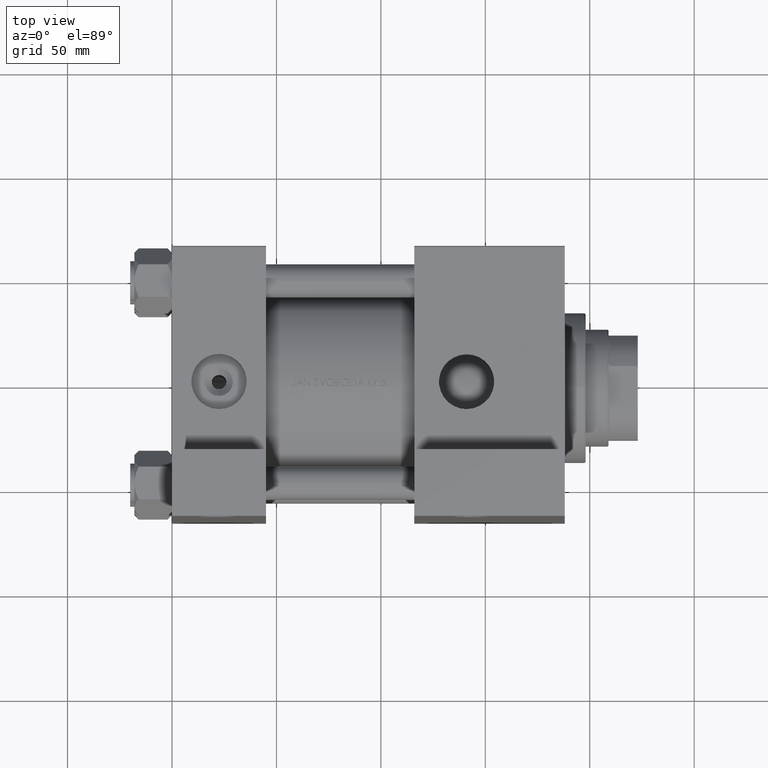
[diagram: clean part render]
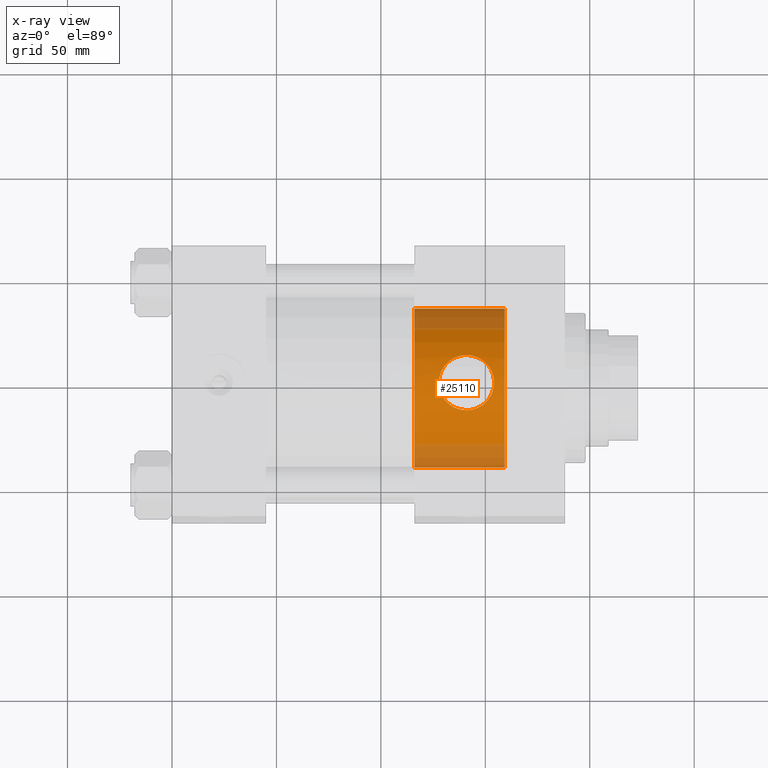
[diagram: x-ray — body ghosted, one internal face saturated and labeled with its STEP entity id]
A machine part, top view, then the same camera in x-ray: the body is ghosted and one INTERNAL B-rep face — a face not visible from any outside direction — is saturated and labeled: STEP entity #25110.
In plain terms, the highlighted cylindrical surface (partial cylindrical patch) has radius 38 mm, axis along (1, 0, 0).
Its self-contained STEP definition (entity closure, byte-faithful):
#418 = CARTESIAN_POINT ( 'NONE',  ( 151.4642026907970660, -36.63749335557151454, 8.090122517376380884 ) ) ;
#652 = CARTESIAN_POINT ( 'NONE',  ( 142.7346413003333794, -34.86547398014265298, 13.11293849209190121 ) ) ;
#786 = CARTESIAN_POINT ( 'NONE',  ( 139.2621027635022415, -34.86564377304693352, 13.11254740545284925 ) ) ;
#800 = EDGE_CURVE ( 'NONE', #35063, #37606, #31866, .T. ) ;
#894 = CARTESIAN_POINT ( 'NONE',  ( 145.6903198226786458, -36.55875268236805198, -12.36763346371769501 ) ) ;
#941 = VECTOR ( 'NONE', #30660, 1000.000000000000000 ) ;
#1024 = CARTESIAN_POINT ( 'NONE',  ( 129.5707830003892127, -36.99825475371151384, 6.698221717792319119 ) ) ;
#1134 = CARTESIAN_POINT ( 'NONE',  ( 154.2253581792138561, -37.99057531168406854, -0.7849639124246683419 ) ) ;
#1261 = CARTESIAN_POINT ( 'NONE',  ( 129.5033817226610893, -37.72956381629557399, -6.584862531444480638 ) ) ;
#1505 = CARTESIAN_POINT ( 'NONE',  ( 139.2526670680328493, -36.33310476771637809, -13.13270914549851298 ) ) ;
#1648 = CIRCLE ( 'NONE', #24886, 38.00000000000000000 ) ;
#4061 = CARTESIAN_POINT ( 'NONE',  ( 152.8828564690548717, -37.81049890679813785, -5.809885133141944991 ) ) ;
#4292 = CARTESIAN_POINT ( 'NONE',  ( 149.0625700176376540, -35.88477209687096803, 10.51153348735561011 ) ) ;
#4359 = LINE ( 'NONE', #23273, #29450 ) ;
#4421 = CARTESIAN_POINT ( 'NONE',  ( 136.7191741648161951, -35.11120562881720986, 12.53718063077738698 ) ) ;
#4527 = CARTESIAN_POINT ( 'NONE',  ( 152.8238717678103740, -37.16566442010724813, 5.928573979386407622 ) ) ;
#4769 = CARTESIAN_POINT ( 'NONE',  ( 154.1923565151350033, -37.88706170508164206, 0.9599543874862046522 ) ) ;
#4898 = CARTESIAN_POINT ( 'NONE',  ( 134.3770611033072271, -35.54092409615689263, 11.44955992700611880 ) ) ;
#5380 = CARTESIAN_POINT ( 'NONE',  ( 127.9669524334681228, -37.76318761159770787, 2.257168089450936499 ) ) ;
#7686 = CARTESIAN_POINT ( 'NONE',  ( 153.0668203676117685, -37.84816157645740731, -5.417409685537321273 ) ) ;
#7911 = CARTESIAN_POINT ( 'NONE',  ( 153.7705088574690819, -37.60581935524176345, 3.525064450256392146 ) ) ;
#8149 = CARTESIAN_POINT ( 'NONE',  ( 154.0327892283337121, -37.76302963194533646, 2.258472690585056508 ) ) ;
#8283 = CARTESIAN_POINT ( 'NONE',  ( 140.1184107338403351, -36.30580669810270678, -13.22000000000000952 ) ) ;
#8389 = CARTESIAN_POINT ( 'NONE',  ( 153.8970428021249859, -37.99087152665658351, -2.936962175514609363 ) ) ;
#8498 = ORIENTED_EDGE ( 'NONE', *, *, #17123, .F. ) ;
#8523 = CARTESIAN_POINT ( 'NONE',  ( 134.3442237842121756, -36.80826901869016865, -11.45506950435124338 ) ) ;
#9000 = CARTESIAN_POINT ( 'NONE',  ( 127.7830102878484979, -37.91895069209609659, 0.5185396665161369212 ) ) ;
#9237 = CARTESIAN_POINT ( 'NONE',  ( 135.1401722862821373, -35.38356645407884571, 11.85825287793163874 ) ) ;
#9923 = VERTEX_POINT ( 'NONE', #41686 ) ;
#10271 = CARTESIAN_POINT ( 'NONE',  ( 159.3000000000000114, 0.000000000000000000, -39.99999999999998579 ) ) ;
#10450 = CARTESIAN_POINT ( 'NONE',  ( 115.9999999999999858, 0.000000000000000000, -39.99999999999998579 ) ) ;
#10822 = EDGE_CURVE ( 'NONE', #41631, #9923, #4359, .T. ) ;
#11788 = CARTESIAN_POINT ( 'NONE',  ( 150.9220406513138073, -36.45034192776826387, 8.746583882517859010 ) ) ;
#12025 = CARTESIAN_POINT ( 'NONE',  ( 153.5410806955982821, -37.93829887808205825, -4.204879316305916603 ) ) ;
#12156 = CARTESIAN_POINT ( 'NONE',  ( 136.7194645385301044, -36.51634164698442220, -12.51543961431428897 ) ) ;
#12401 = CARTESIAN_POINT ( 'NONE',  ( 140.5658393548362426, -34.81883972794039295, 13.22000000000001840 ) ) ;
#12625 = ORIENTED_EDGE ( 'NONE', *, *, #24176, .T. ) ;
#12643 = CARTESIAN_POINT ( 'NONE',  ( 130.4705868400011752, -37.52389163003577011, -8.041399435353824288 ) ) ;
#12792 = DIRECTION ( 'NONE',  ( 0.000000000000000000, 0.000000000000000000, -1.000000000000000000 ) ) ;
#13374 = CARTESIAN_POINT ( 'NONE',  ( 115.9999999999999858, 0.000000000000000000, -1.999999999999988010 ) ) ;
#13418 = CIRCLE ( 'NONE', #27427, 38.00000000000000000 ) ;
#13971 = CARTESIAN_POINT ( 'NONE',  ( 115.9999999999999858, 4.653657836759941941E-15, 36.00000000000001421 ) ) ;
#14911 = ORIENTED_EDGE ( 'NONE', *, *, #33865, .T. ) ;
#15145 = ORIENTED_EDGE ( 'NONE', *, *, #10822, .T. ) ;
#15189 = CARTESIAN_POINT ( 'NONE',  ( 144.4420950536643034, -36.44163912734476440, -12.77146717550510679 ) ) ;
#15431 = CARTESIAN_POINT ( 'NONE',  ( 145.2829566133793548, -35.11144068922274641, 12.53664980638293081 ) ) ;
#15667 = CARTESIAN_POINT ( 'NONE',  ( 154.2169054650021565, -37.91879989042578813, 0.5208423535708411878 ) ) ;
#15789 = CARTESIAN_POINT ( 'NONE',  ( -13.48023074035523194, 0.000000000000000000, -39.99999999999998579 ) ) ;
#15798 = CARTESIAN_POINT ( 'NONE',  ( 135.5292921005779760, -35.31057834280793628, 12.04260134186884912 ) ) ;
#15907 = CARTESIAN_POINT ( 'NONE',  ( 147.6528821679950170, -36.80786112204481242, -11.45656873318479541 ) ) ;
#15965 = CARTESIAN_POINT ( 'NONE',  ( 141.0000000000000000, -34.81883972794038584, 13.22000000000001663 ) ) ;
#16037 = CARTESIAN_POINT ( 'NONE',  ( 128.6045373898323305, -37.91197009954529307, -4.616085602355758155 ) ) ;
#16282 = CARTESIAN_POINT ( 'NONE',  ( 133.2663750092749524, -36.98428736182029297, -10.73064947236997924 ) ) ;
#16443 = VERTEX_POINT ( 'NONE', #10271 ) ;
#16521 = CARTESIAN_POINT ( 'NONE',  ( 131.0169695187528021, -37.40821933718307690, -8.709134316197207681 ) ) ;
#17123 = EDGE_CURVE ( 'NONE', #46036, #16443, #26995, .T. ) ;
#17142 = AXIS2_PLACEMENT_3D ( 'NONE', #30819, #38118, #12792 ) ;
#18602 = CARTESIAN_POINT ( 'NONE',  ( 144.4571944884152970, -35.00419393395034007, 12.78990986691792742 ) ) ;
#18839 = CARTESIAN_POINT ( 'NONE',  ( 151.7185126045471293, -36.72968401672413563, 7.749993592228429762 ) ) ;
#19075 = CARTESIAN_POINT ( 'NONE',  ( 150.6331099638243245, -36.35504197374253010, 9.063978380048260064 ) ) ;
#19206 = CARTESIAN_POINT ( 'NONE',  ( 137.5422408070765812, -35.00433994923903924, 12.78955956148845097 ) ) ;
#19316 = CARTESIAN_POINT ( 'NONE',  ( 154.1000314400817501, -37.80901679354371225, 1.830016152210643288 ) ) ;
#19450 = CARTESIAN_POINT ( 'NONE',  ( 132.2855022092603008, -36.06844539068644906, 9.977675486919514114 ) ) ;
#19560 = CARTESIAN_POINT ( 'NONE',  ( 154.1457947766875236, -38.00807798060433385, -1.649460254205606269 ) ) ;
#19694 = CARTESIAN_POINT ( 'NONE',  ( 129.0972672544065176, -37.81630080774078095, -5.817448892800099358 ) ) ;
#19844 = FACE_BOUND ( 'NONE', #25352, .T. ) ;
#19889 = EDGE_CURVE ( 'NONE', #37606, #35063, #46921, .T. ) ;
#19930 = CARTESIAN_POINT ( 'NONE',  ( 141.0000000000000000, -36.30580669810271388, -13.22000000000000952 ) ) ;
#20181 = CARTESIAN_POINT ( 'NONE',  ( 128.4857071059992109, -37.47470314198346131, 4.348809781156726118 ) ) ;
#22495 = CARTESIAN_POINT ( 'NONE',  ( 153.0122254699012956, -37.24719907920242434, 5.537240463846701211 ) ) ;
#22731 = CARTESIAN_POINT ( 'NONE',  ( 152.4152243103603439, -36.99699539428115003, 6.681660493832258574 ) ) ;
#23096 = CARTESIAN_POINT ( 'NONE',  ( 135.1036065885802486, -36.69906825648583037, -11.86403189754284249 ) ) ;
#23205 = CARTESIAN_POINT ( 'NONE',  ( 149.0765887743845326, -37.04394579636399953, -10.47506457977866745 ) ) ;
#23273 = CARTESIAN_POINT ( 'NONE',  ( -13.48023074035523194, 4.653657836759941941E-15, 36.00000000000001421 ) ) ;
#23344 = CARTESIAN_POINT ( 'NONE',  ( 130.2859386918351277, -36.72804425259461425, 7.756190052861525963 ) ) ;
#23817 = CARTESIAN_POINT ( 'NONE',  ( 127.8073938140129826, -37.88731688347861137, 0.9567683311120193101 ) ) ;
#24176 = EDGE_CURVE ( 'NONE', #9923, #16443, #1648, .T. ) ;
#24886 = AXIS2_PLACEMENT_3D ( 'NONE', #25349, #43398, #28782 ) ;
#25110 = ADVANCED_FACE ( 'NONE', ( #19844, #30584 ), #42026, .F. ) ;
#25349 = CARTESIAN_POINT ( 'NONE',  ( 159.3000000000000114, 0.000000000000000000, -1.999999999999988010 ) ) ;
#25352 = EDGE_LOOP ( 'NONE', ( #27584, #33110 ) ) ;
#26395 = CARTESIAN_POINT ( 'NONE',  ( 150.0686983054853272, -37.22766486133667030, -9.628768659086947679 ) ) ;
#26870 = CARTESIAN_POINT ( 'NONE',  ( 147.9982523019006635, -35.62573892309502099, 11.22386331016282845 ) ) ;
#26995 = LINE ( 'NONE', #15789, #941 ) ;
#27113 = CARTESIAN_POINT ( 'NONE',  ( 151.5275544278700011, -37.52349855308634119, -8.043607895082169890 ) ) ;
#27246 = CARTESIAN_POINT ( 'NONE',  ( 141.0000000000000000, -34.81883972794038584, 13.22000000000001663 ) ) ;
#27427 = AXIS2_PLACEMENT_3D ( 'NONE', #13374, #32146, #37179 ) ;
#27485 = CARTESIAN_POINT ( 'NONE',  ( 128.4595858639368942, -37.93818000440987959, -4.206797350588238338 ) ) ;
#27584 = ORIENTED_EDGE ( 'NONE', *, *, #800, .F. ) ;
#27727 = CARTESIAN_POINT ( 'NONE',  ( 127.7747698079172949, -37.99062179197093059, -0.7866944221894590639 ) ) ;
#28782 = DIRECTION ( 'NONE',  ( 0.000000000000000000, 0.000000000000000000, -1.000000000000000000 ) ) ;
#29450 = VECTOR ( 'NONE', #38140, 1000.000000000000000 ) ;
#29831 = CARTESIAN_POINT ( 'NONE',  ( 141.8812079327709057, -36.30580669810271388, -13.22000000000000952 ) ) ;
#30060 = CARTESIAN_POINT ( 'NONE',  ( 141.0000000000000000, -36.30580669810271388, -13.22000000000000952 ) ) ;
#30301 = CARTESIAN_POINT ( 'NONE',  ( 146.8681908313527344, -35.38519044670636049, 11.85410815712388732 ) ) ;
#30429 = CARTESIAN_POINT ( 'NONE',  ( 136.3057317614561725, -36.55918249840727441, -12.36611591149928557 ) ) ;
#30542 = CARTESIAN_POINT ( 'NONE',  ( 142.7468618634242716, -36.33310806666504078, -13.13269267744500013 ) ) ;
#30584 = FACE_OUTER_BOUND ( 'NONE', #32440, .T. ) ;
#30660 = DIRECTION ( 'NONE',  ( 1.000000000000000000, -0.000000000000000000, -0.000000000000000000 ) ) ;
#30778 = CARTESIAN_POINT ( 'NONE',  ( 146.8941152655645510, -36.69874424762632970, -11.86524485056118472 ) ) ;
#30819 = CARTESIAN_POINT ( 'NONE',  ( -13.48023074035523194, 0.000000000000000000, -1.999999999999988010 ) ) ;
#30915 = CARTESIAN_POINT ( 'NONE',  ( 128.2297926464892726, -37.60563237366710609, 3.526634482111598690 ) ) ;
#31405 = CARTESIAN_POINT ( 'NONE',  ( 129.1606489930927637, -37.16892737242438471, 5.945539578942175218 ) ) ;
#31866 = B_SPLINE_CURVE_WITH_KNOTS ( 'NONE', 3,
 ( #19930, #8283, #1505, #41873, #41634, #12156, #30429, #23096, #8523, #16282, #45996, #37971, #38459, #16521, #12643, #1261, #19694, #16037, #27485, #37737, #34090, #42360, #27727, #9000, #23817, #38701, #5380, #30915, #20181, #31405, #1024, #23344, #38212, #35061, #42594, #19450, #42118, #34332, #4898, #9237, #15798, #4421, #19206, #34570, #786, #45758, #12401, #27246 ),
 .UNSPECIFIED., .F., .F.,
 ( 4, 2, 2, 2, 2, 2, 2, 2, 2, 2, 2, 2, 2, 2, 2, 2, 2, 2, 2, 2, 2, 2, 2, 4 ),
 ( 0.000000000000000000, 0.002605939954519834525, 0.003908909931779750921, 0.005211879909039668184, 0.007817819863559423779, 0.009120789840819302011, 0.01042375981807917851, 0.01302969977259887426, 0.01563563972711857000, 0.01693860970437842048, 0.01824157968163826748, 0.02084751963615796497, 0.02215048961341781544, 0.02345345959067766245, 0.02605939954519738075, 0.02866533949971709905, 0.02996830947697693912, 0.03127127945423677918, 0.03387721940875640381, 0.03518018938601621265, 0.03648315936327602149, 0.03908909931779565305, 0.04039206929505546190, 0.04169503927231527074 ),
 .UNSPECIFIED. ) ;
#32146 = DIRECTION ( 'NONE',  ( -1.000000000000000000, 0.000000000000000000, -0.000000000000000000 ) ) ;
#32440 = EDGE_LOOP ( 'NONE', ( #14911, #15145, #12625, #8498 ) ) ;
#33110 = ORIENTED_EDGE ( 'NONE', *, *, #19889, .F. ) ;
#33479 = CARTESIAN_POINT ( 'NONE',  ( 150.9813104652379820, -37.40785330659642938, -8.711265165349974637 ) ) ;
#33722 = CARTESIAN_POINT ( 'NONE',  ( 148.7280399663890194, -36.98334325628505326, -10.73462390341398986 ) ) ;
#33865 = EDGE_CURVE ( 'NONE', #46036, #41631, #13418, .T. ) ;
#33952 = CARTESIAN_POINT ( 'NONE',  ( 152.1940230836750061, -36.90943314654656859, 7.045761870484139600 ) ) ;
#34090 = CARTESIAN_POINT ( 'NONE',  ( 128.1036686155430289, -37.99079742417753636, -2.940149167302716915 ) ) ;
#34202 = CARTESIAN_POINT ( 'NONE',  ( 146.4766234868882862, -35.31163105855356577, 12.03996352207335008 ) ) ;
#34332 = CARTESIAN_POINT ( 'NONE',  ( 134.0075421683803540, -35.62439513144992276, 11.22748182563668706 ) ) ;
#34442 = CARTESIAN_POINT ( 'NONE',  ( 152.2516471258350634, -37.67747063124193829, -6.954063165235686128 ) ) ;
#34570 = CARTESIAN_POINT ( 'NONE',  ( 138.8247654588546709, -34.89403134342496315, 13.04710265899235644 ) ) ;
#35061 = CARTESIAN_POINT ( 'NONE',  ( 131.0868668614033652, -36.44734711139138739, 8.756785924463487802 ) ) ;
#35063 = VERTEX_POINT ( 'NONE', #45978 ) ;
#37179 = DIRECTION ( 'NONE',  ( 0.000000000000000000, 0.000000000000000000, 1.000000000000000000 ) ) ;
#37369 = CARTESIAN_POINT ( 'NONE',  ( 147.6306166449877537, -35.54260995408808554, 11.44510667233715040 ) ) ;
#37606 = VERTEX_POINT ( 'NONE', #15965 ) ;
#37737 = CARTESIAN_POINT ( 'NONE',  ( 128.2092846114306042, -37.97760689536809053, -3.369974851761146972 ) ) ;
#37839 = CARTESIAN_POINT ( 'NONE',  ( 149.7488308513057973, -37.16646872190493411, -9.920495094312938633 ) ) ;
#37971 = CARTESIAN_POINT ( 'NONE',  ( 132.2464038040132266, -37.16737369524425105, -9.916213773395980979 ) ) ;
#38081 = CARTESIAN_POINT ( 'NONE',  ( 145.2758891593287274, -36.51589220282654935, -12.51699500960990008 ) ) ;
#38118 = DIRECTION ( 'NONE',  ( 1.000000000000000000, -0.000000000000000000, -0.000000000000000000 ) ) ;
#38140 = DIRECTION ( 'NONE',  ( 1.000000000000000000, -0.000000000000000000, -0.000000000000000000 ) ) ;
#38212 = CARTESIAN_POINT ( 'NONE',  ( 130.5413227046334157, -36.63550809892055327, 8.097380908775916097 ) ) ;
#38459 = CARTESIAN_POINT ( 'NONE',  ( 131.9275744840638254, -37.22838765762441682, -9.625220765756949959 ) ) ;
#38701 = CARTESIAN_POINT ( 'NONE',  ( 127.8996604500427168, -37.80923338814960744, 1.827940724909905557 ) ) ;
#40068 = CARTESIAN_POINT ( 'NONE',  ( 141.8676965543383517, -34.82818131592057398, 13.19868323083015760 ) ) ;
#41020 = CARTESIAN_POINT ( 'NONE',  ( 153.7915941362871308, -37.97773134918060123, -3.366724599771829141 ) ) ;
#41257 = CARTESIAN_POINT ( 'NONE',  ( 153.5155031928078699, -37.47534753697215848, 4.344577149463241916 ) ) ;
#41501 = CARTESIAN_POINT ( 'NONE',  ( 149.7210561955944002, -36.07028278612734340, 9.972363081523655026 ) ) ;
#41631 = VERTEX_POINT ( 'NONE', #13971 ) ;
#41634 = CARTESIAN_POINT ( 'NONE',  ( 137.5549805154755916, -36.44186421241074214, -12.77071076047436371 ) ) ;
#41686 = CARTESIAN_POINT ( 'NONE',  ( 159.3000000000000114, 4.653657836759941941E-15, 36.00000000000001421 ) ) ;
#41740 = CARTESIAN_POINT ( 'NONE',  ( 143.1703453504870538, -34.89365984636410900, 13.04796528556359192 ) ) ;
#41873 = CARTESIAN_POINT ( 'NONE',  ( 137.9765679394783149, -36.41016624661840950, -12.87693535140483014 ) ) ;
#42026 = CYLINDRICAL_SURFACE ( 'NONE', #17142, 38.00000000000000000 ) ;
#42118 = CARTESIAN_POINT ( 'NONE',  ( 132.9423658319662138, -35.88343941882920518, 10.51535022251081664 ) ) ;
#42360 = CARTESIAN_POINT ( 'NONE',  ( 127.8543933057491273, -38.00811451590385559, -1.651419345576841557 ) ) ;
#42594 = CARTESIAN_POINT ( 'NONE',  ( 131.3777369555955374, -36.35155268361959457, 9.075377340422759787 ) ) ;
#43398 = DIRECTION ( 'NONE',  ( 1.000000000000000000, 0.000000000000000000, 0.000000000000000000 ) ) ;
#43721 = CARTESIAN_POINT ( 'NONE',  ( 141.4339728480155429, -34.81883972794040005, 13.22000000000001840 ) ) ;
#45150 = CARTESIAN_POINT ( 'NONE',  ( 153.3959316491153118, -37.91205993859825440, -4.614906286765361187 ) ) ;
#45385 = CARTESIAN_POINT ( 'NONE',  ( 152.4758866736628704, -37.72528651691722246, -6.577314663121028637 ) ) ;
#45621 = CARTESIAN_POINT ( 'NONE',  ( 144.0212301258483478, -36.41001744799283557, -12.87743197843391663 ) ) ;
#45758 = CARTESIAN_POINT ( 'NONE',  ( 140.1314293598718450, -34.82818932177668358, 13.19866551239110741 ) ) ;
#45978 = CARTESIAN_POINT ( 'NONE',  ( 141.0000000000000000, -36.30580669810271388, -13.22000000000000952 ) ) ;
#45996 = CARTESIAN_POINT ( 'NONE',  ( 132.9156049661757208, -37.04533280348282176, -10.46896837798070479 ) ) ;
#46036 = VERTEX_POINT ( 'NONE', #10450 ) ;
#46921 = B_SPLINE_CURVE_WITH_KNOTS ( 'NONE', 3,
 ( #47355, #43721, #40068, #652, #41740, #18602, #15431, #34202, #30301, #37369, #26870, #4292, #41501, #19075, #11788, #418, #18839, #33952, #22731, #4527, #22495, #41257, #7911, #8149, #19316, #4769, #15667, #1134, #19560, #8389, #41020, #12025, #45150, #7686, #4061, #45385, #34442, #27113, #33479, #26395, #37839, #23205, #33722, #15907, #30778, #894, #38081, #15189, #45621, #30542, #29831, #30060 ),
 .UNSPECIFIED., .F., .F.,
 ( 4, 2, 2, 2, 2, 2, 2, 2, 2, 2, 2, 2, 2, 2, 2, 2, 2, 2, 2, 2, 2, 2, 2, 2, 2, 4 ),
 ( 0.04169503927231527074, 0.04299744564702687871, 0.04429985202173848668, 0.04690466477116162630, 0.04820707114587323427, 0.04950947752058484225, 0.05211429027000805819, 0.05341669664471969392, 0.05471910301943133659, 0.05602150939414297232, 0.05732391576885460804, 0.05992872851827789338, 0.06123113489298953604, 0.06253354126770117871, 0.06513835401712445017, 0.06644076039183610671, 0.06774316676654774938, 0.06904557314125939205, 0.07034797951597103471, 0.07295279226539429229, 0.07425519864010592108, 0.07555760501481754987, 0.07816241776424073806, 0.07946482413895231134, 0.08076723051366391237, 0.08337204326308718383 ),
 .UNSPECIFIED. ) ;
#47355 = CARTESIAN_POINT ( 'NONE',  ( 141.0000000000000000, -34.81883972794038584, 13.22000000000001663 ) ) ;